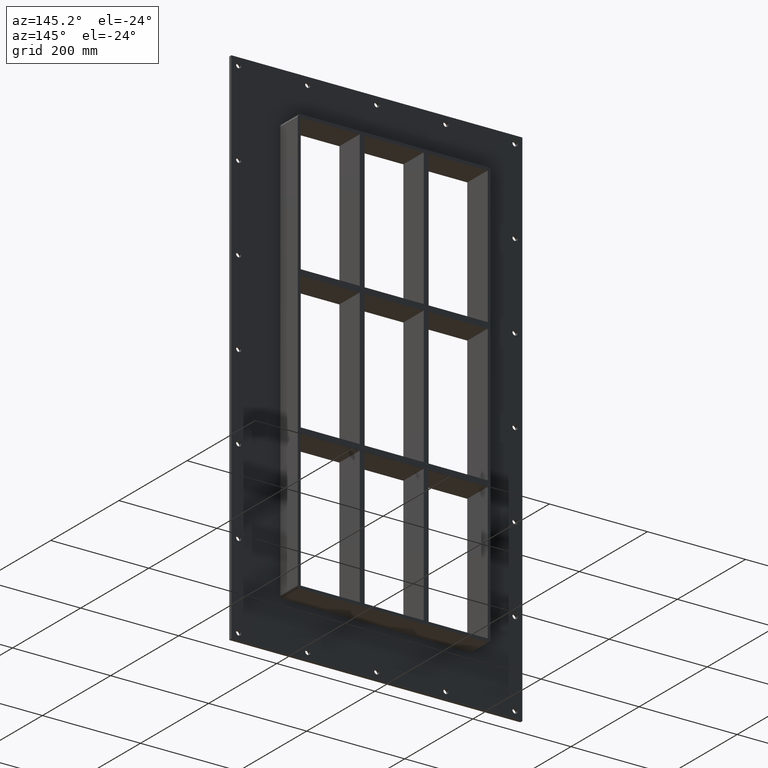
[diagram: clean part render]
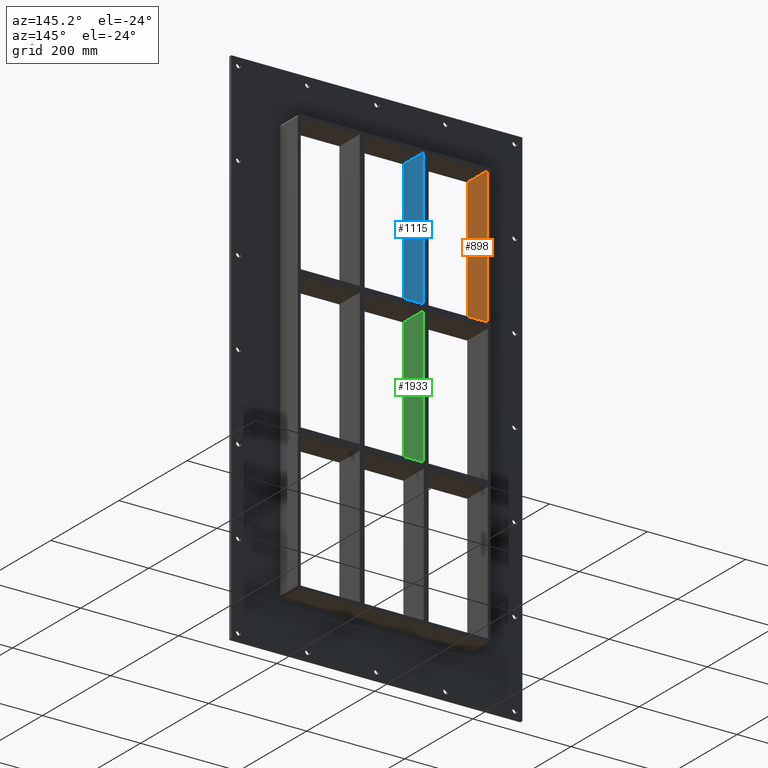
[diagram: same view with three faces highlighted in distinct colors, each labeled with its STEP entity id]
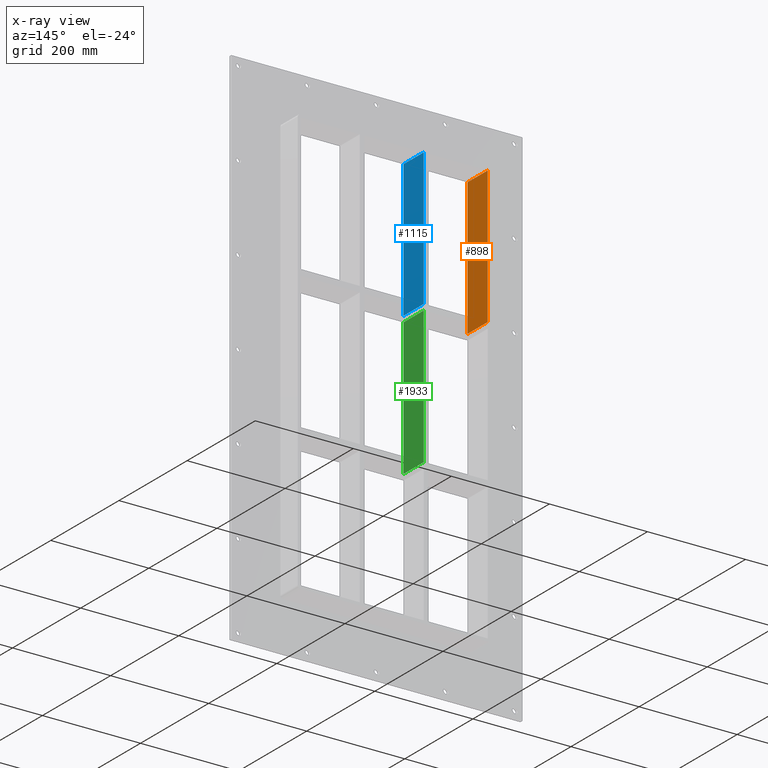
[diagram: x-ray of the same camera — body ghosted, the three highlighted faces saturated]
A machine part, auxiliary view with three faces highlighted in distinct colors.
The next image is the same camera in x-ray (body ghosted, the three faces saturated) — at least one of them is partly hidden behind the body in this view.
Their STEP definitions:

[orange] entity #898 — the highlighted planar face has unit normal (-1, 0, 0).
#763=CARTESIAN_POINT('',(-190.74999999999972,57.0,150.99999999999994));
#764=VERTEX_POINT('',#763);
#771=CARTESIAN_POINT('',(-190.74999999999972,-3.0,150.99999999999994));
#772=VERTEX_POINT('',#771);
#773=CARTESIAN_POINT('',(-190.75000000000003,-3.0,150.99999999999994));
#774=DIRECTION('',(0.0,1.0,0.0));
#775=VECTOR('',#774,60.000000000000007);
#776=LINE('',#773,#775);
#777=EDGE_CURVE('',#772,#764,#776,.T.);
#868=CARTESIAN_POINT('',(-190.75000000000003,0.0,-429.00000000000006));
#869=DIRECTION('',(-1.0,0.0,0.0));
#870=DIRECTION('',(0.0,0.0,1.0));
#871=AXIS2_PLACEMENT_3D('',#868,#869,#870);
#872=PLANE('',#871);
#873=ORIENTED_EDGE('',*,*,#777,.T.);
#874=CARTESIAN_POINT('',(-190.75000000000003,57.0,429.00000000000006));
#875=VERTEX_POINT('',#874);
#876=CARTESIAN_POINT('',(-190.75000000000003,57.0,429.00000000000006));
#877=DIRECTION('',(0.0,0.0,-1.0));
#878=VECTOR('',#877,278.00000000000011);
#879=LINE('',#876,#878);
#880=EDGE_CURVE('',#875,#764,#879,.T.);
#881=ORIENTED_EDGE('',*,*,#880,.F.);
#882=CARTESIAN_POINT('',(-190.75000000000003,-3.0,429.00000000000006));
#883=VERTEX_POINT('',#882);
#884=CARTESIAN_POINT('',(-190.75000000000003,-3.0,429.00000000000006));
#885=DIRECTION('',(0.0,1.0,0.0));
#886=VECTOR('',#885,60.0);
#887=LINE('',#884,#886);
#888=EDGE_CURVE('',#883,#875,#887,.T.);
#889=ORIENTED_EDGE('',*,*,#888,.F.);
#890=CARTESIAN_POINT('',(-190.75000000000003,-3.0,150.99999999999994));
#891=DIRECTION('',(0.0,0.0,1.0));
#892=VECTOR('',#891,278.00000000000011);
#893=LINE('',#890,#892);
#894=EDGE_CURVE('',#772,#883,#893,.T.);
#895=ORIENTED_EDGE('',*,*,#894,.F.);
#896=EDGE_LOOP('',(#873,#881,#889,#895));
#897=FACE_OUTER_BOUND('',#896,.T.);
#898=ADVANCED_FACE('',(#897),#872,.F.);

[blue] entity #1115 — the highlighted planar face has unit normal (1, 0, 0).
#843=CARTESIAN_POINT('',(-60.249999999996362,57.0,150.99999999999994));
#844=VERTEX_POINT('',#843);
#851=CARTESIAN_POINT('',(-60.249999999996362,-3.0,150.99999999999994));
#852=VERTEX_POINT('',#851);
#853=CARTESIAN_POINT('',(-60.249999999996362,-3.0,150.99999999999994));
#854=DIRECTION('',(0.0,1.0,0.0));
#855=VECTOR('',#854,60.0);
#856=LINE('',#853,#855);
#857=EDGE_CURVE('',#852,#844,#856,.T.);
#1085=CARTESIAN_POINT('',(-60.249999999996362,-3.0,429.00000000000006));
#1086=DIRECTION('',(1.0,0.0,0.0));
#1087=DIRECTION('',(0.0,0.0,-1.0));
#1088=AXIS2_PLACEMENT_3D('',#1085,#1086,#1087);
#1089=PLANE('',#1088);
#1090=ORIENTED_EDGE('',*,*,#857,.T.);
#1091=CARTESIAN_POINT('',(-60.249999999996362,57.0,429.00000000000006));
#1092=VERTEX_POINT('',#1091);
#1093=CARTESIAN_POINT('',(-60.249999999996362,57.0,429.00000000000006));
#1094=DIRECTION('',(0.0,0.0,-1.0));
#1095=VECTOR('',#1094,278.00000000000011);
#1096=LINE('',#1093,#1095);
#1097=EDGE_CURVE('',#1092,#844,#1096,.T.);
#1098=ORIENTED_EDGE('',*,*,#1097,.F.);
#1099=CARTESIAN_POINT('',(-60.249999999996362,-3.0,429.00000000000006));
#1100=VERTEX_POINT('',#1099);
#1101=CARTESIAN_POINT('',(-60.249999999996362,-3.0,429.00000000000006));
#1102=DIRECTION('',(0.0,1.0,0.0));
#1103=VECTOR('',#1102,60.000000000000007);
#1104=LINE('',#1101,#1103);
#1105=EDGE_CURVE('',#1100,#1092,#1104,.T.);
#1106=ORIENTED_EDGE('',*,*,#1105,.F.);
#1107=CARTESIAN_POINT('',(-60.249999999996362,-3.0,429.00000000000006));
#1108=DIRECTION('',(0.0,0.0,-1.0));
#1109=VECTOR('',#1108,278.00000000000011);
#1110=LINE('',#1107,#1109);
#1111=EDGE_CURVE('',#1100,#852,#1110,.T.);
#1112=ORIENTED_EDGE('',*,*,#1111,.T.);
#1113=EDGE_LOOP('',(#1090,#1098,#1106,#1112));
#1114=FACE_OUTER_BOUND('',#1113,.T.);
#1115=ADVANCED_FACE('',(#1114),#1089,.T.);

[green] entity #1933 — the highlighted planar face has unit normal (1, 0, 0).
#723=CARTESIAN_POINT('',(-60.249999999996362,-3.0,138.99999999999068));
#724=VERTEX_POINT('',#723);
#731=CARTESIAN_POINT('',(-60.249999999996362,57.0,138.99999999999068));
#732=VERTEX_POINT('',#731);
#733=CARTESIAN_POINT('',(-60.249999999996355,57.0,138.99999999999068));
#734=DIRECTION('',(0.0,-1.0,0.0));
#735=VECTOR('',#734,60.0);
#736=LINE('',#733,#735);
#737=EDGE_CURVE('',#732,#724,#736,.T.);
#1250=CARTESIAN_POINT('',(-60.249999999996362,57.0,-139.00000000000006));
#1251=VERTEX_POINT('',#1250);
#1252=CARTESIAN_POINT('',(-60.249999999996362,57.0,138.99999999999068));
#1253=DIRECTION('',(0.0,0.0,-1.0));
#1254=VECTOR('',#1253,277.99999999999073);
#1255=LINE('',#1252,#1254);
#1256=EDGE_CURVE('',#732,#1251,#1255,.T.);
#1644=CARTESIAN_POINT('',(-60.249999999996362,-3.0,-139.00000000000006));
#1645=VERTEX_POINT('',#1644);
#1652=CARTESIAN_POINT('',(-60.249999999996362,-3.0,138.99999999999068));
#1653=DIRECTION('',(0.0,0.0,-1.0));
#1654=VECTOR('',#1653,277.99999999999073);
#1655=LINE('',#1652,#1654);
#1656=EDGE_CURVE('',#724,#1645,#1655,.T.);
#1871=CARTESIAN_POINT('',(-60.249999999996362,-3.0,-139.00000000000006));
#1872=DIRECTION('',(0.0,1.0,0.0));
#1873=VECTOR('',#1872,60.0);
#1874=LINE('',#1871,#1873);
#1875=EDGE_CURVE('',#1645,#1251,#1874,.T.);
#1922=CARTESIAN_POINT('',(-60.249999999996362,-3.0,429.00000000000006));
#1923=DIRECTION('',(1.0,0.0,0.0));
#1924=DIRECTION('',(0.0,0.0,-1.0));
#1925=AXIS2_PLACEMENT_3D('',#1922,#1923,#1924);
#1926=PLANE('',#1925);
#1927=ORIENTED_EDGE('',*,*,#737,.T.);
#1928=ORIENTED_EDGE('',*,*,#1656,.T.);
#1929=ORIENTED_EDGE('',*,*,#1875,.T.);
#1930=ORIENTED_EDGE('',*,*,#1256,.F.);
#1931=EDGE_LOOP('',(#1927,#1928,#1929,#1930));
#1932=FACE_OUTER_BOUND('',#1931,.T.);
#1933=ADVANCED_FACE('',(#1932),#1926,.T.);